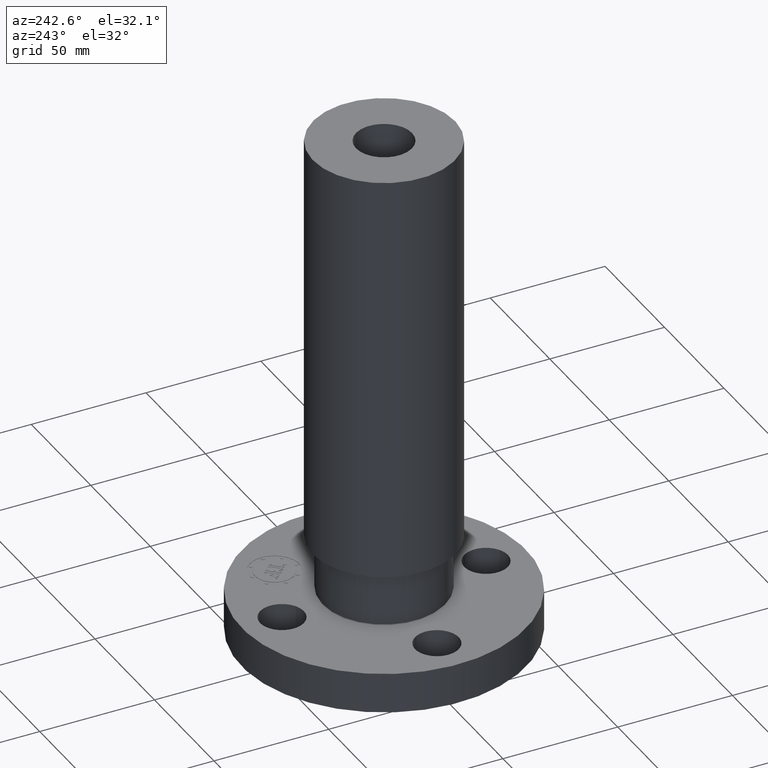
[diagram: clean part render]
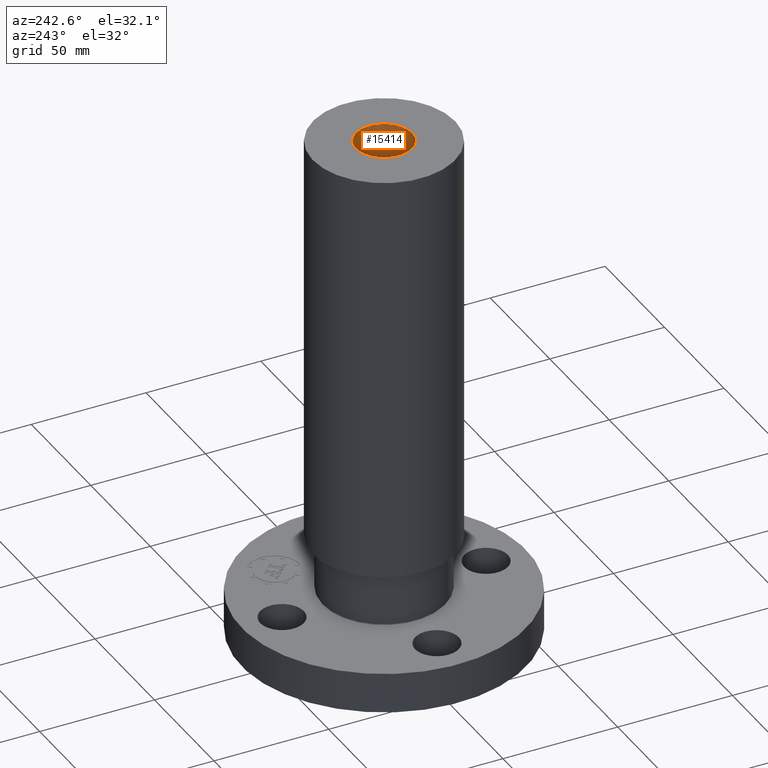
[diagram: same view with one face highlighted and labeled with its STEP entity id]
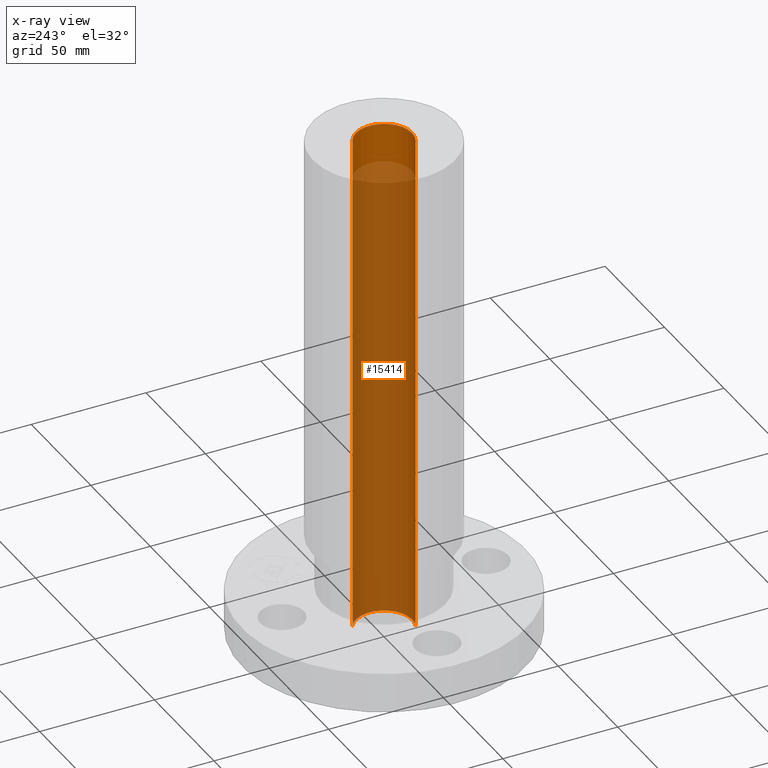
[diagram: x-ray of the same camera — body ghosted, the highlighted face saturated]
A machine part, auxiliary view. The second image highlights one B-rep face of the part: STEP entity #15414.
The next image is the same camera in x-ray: the body ghosted, the highlighted face saturated — about 92% of this face is hidden behind the body in this view.
In plain terms, the highlighted cylindrical surface (edge-blend (fillet) strip) has radius 12.192 mm, axis along (0, 0, -1).
Its self-contained STEP definition (entity closure, byte-faithful):
#14958=AXIS2_PLACEMENT_3D('Circle Axis2P3D',#14956,#14957,$) ;
#15387=AXIS2_PLACEMENT_3D('Cylinder Axis2P3D',#15384,#15385,#15386) ;
#15391=AXIS2_PLACEMENT_3D('Circle Axis2P3D',#15389,#15390,$) ;
#14951=CARTESIAN_POINT('Vertex',(-0.230124258531,-0.421239629709,8.75000000004)) ;
#14953=CARTESIAN_POINT('Vertex',(0.230124258531,0.421239629709,8.75000000004)) ;
#14956=CARTESIAN_POINT('Axis2P3D Location',(0.,0.,8.75000000003)) ;
#15384=CARTESIAN_POINT('Axis2P3D Location',(0.,0.,4.25000000002)) ;
#15389=CARTESIAN_POINT('Axis2P3D Location',(0.,0.,0.)) ;
#15393=CARTESIAN_POINT('Vertex',(-0.230124258531,-0.421239629709,0.)) ;
#15395=CARTESIAN_POINT('Vertex',(0.230124258531,0.421239629709,0.)) ;
#15398=CARTESIAN_POINT('Line Origine',(-0.230124258531,-0.421239629709,4.37500000002)) ;
#15403=CARTESIAN_POINT('Line Origine',(0.230124258531,0.421239629709,4.37500000002)) ;
#14957=DIRECTION('Axis2P3D Direction',(0.,0.,-0.0393700787402)) ;
#15385=DIRECTION('Axis2P3D Direction',(0.,0.,-0.0393700787402)) ;
#15386=DIRECTION('Axis2P3D XDirection',(-0.0188750212049,-0.0345504945626,0.)) ;
#15390=DIRECTION('Axis2P3D Direction',(0.,0.,-0.0393700787402)) ;
#15399=DIRECTION('Vector Direction',(0.,0.,-0.0393700787402)) ;
#15404=DIRECTION('Vector Direction',(0.,0.,-0.0393700787402)) ;
#15400=VECTOR('Line Direction',#15399,0.0393700787402) ;
#15405=VECTOR('Line Direction',#15404,0.0393700787402) ;
#15409=ORIENTED_EDGE('',*,*,#15397,.F.) ;
#15410=ORIENTED_EDGE('',*,*,#15402,.F.) ;
#15411=ORIENTED_EDGE('',*,*,#14960,.F.) ;
#15412=ORIENTED_EDGE('',*,*,#15407,.T.) ;
#15414=ADVANCED_FACE('PartBody',(#15413),#15388,.F.) ;
#14959=CIRCLE('generated circle',#14958,0.480000000002) ;
#15392=CIRCLE('generated circle',#15391,0.480000000002) ;
#15388=CYLINDRICAL_SURFACE('generated cylinder',#15387,0.480000000002) ;
#14960=EDGE_CURVE('',#14954,#14952,#14959,.T.) ;
#15397=EDGE_CURVE('',#15394,#15396,#15392,.F.) ;
#15402=EDGE_CURVE('',#14952,#15394,#15401,.T.) ;
#15407=EDGE_CURVE('',#14954,#15396,#15406,.T.) ;
#15408=EDGE_LOOP('',(#15409,#15410,#15411,#15412)) ;
#15413=FACE_OUTER_BOUND('',#15408,.T.) ;
#15401=LINE('Line',#15398,#15400) ;
#15406=LINE('Line',#15403,#15405) ;
#14952=VERTEX_POINT('',#14951) ;
#14954=VERTEX_POINT('',#14953) ;
#15394=VERTEX_POINT('',#15393) ;
#15396=VERTEX_POINT('',#15395) ;